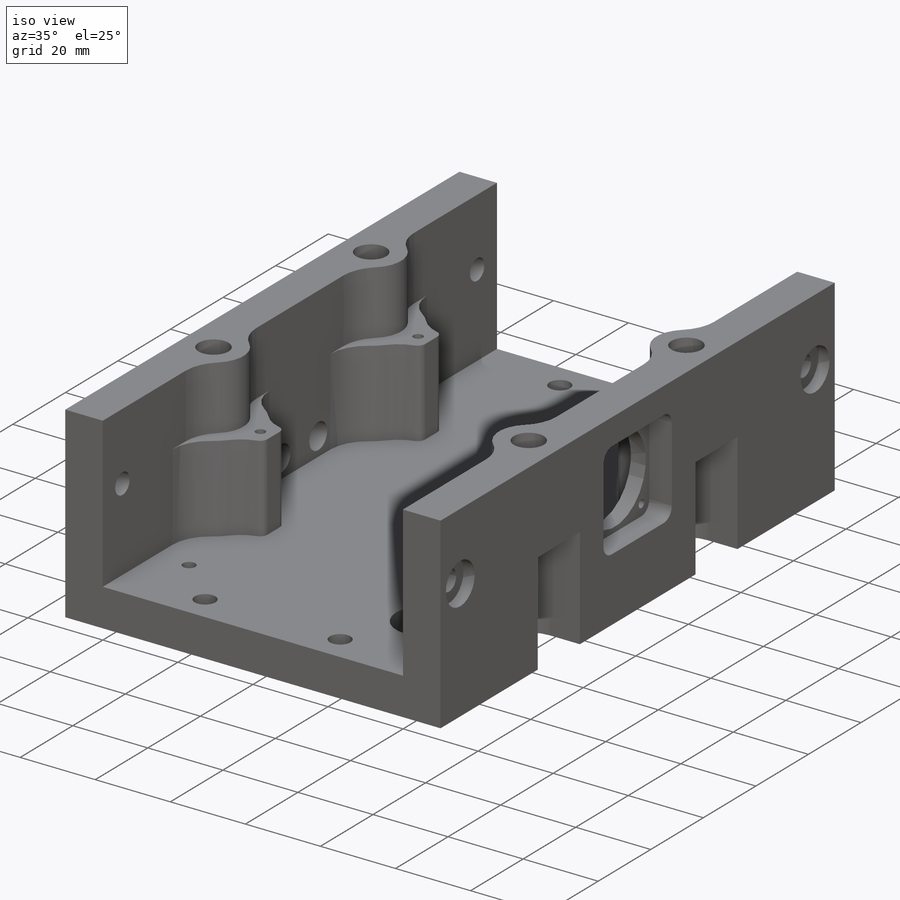
[diagram: iso view]
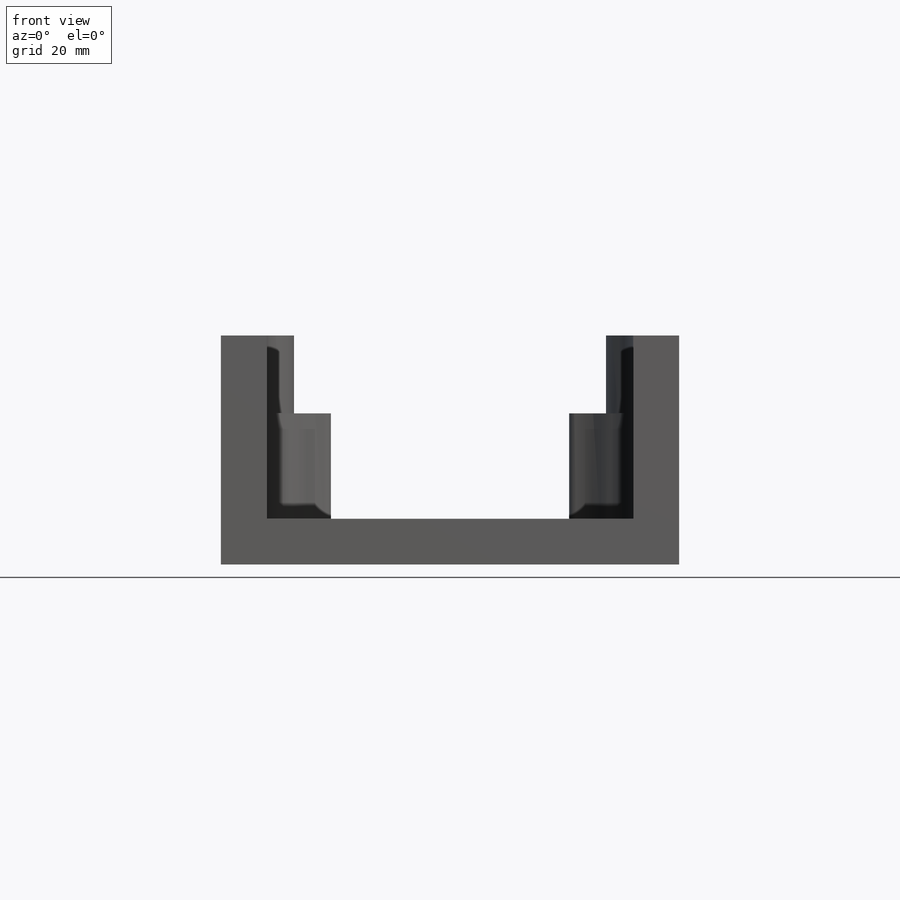
[diagram: front view]
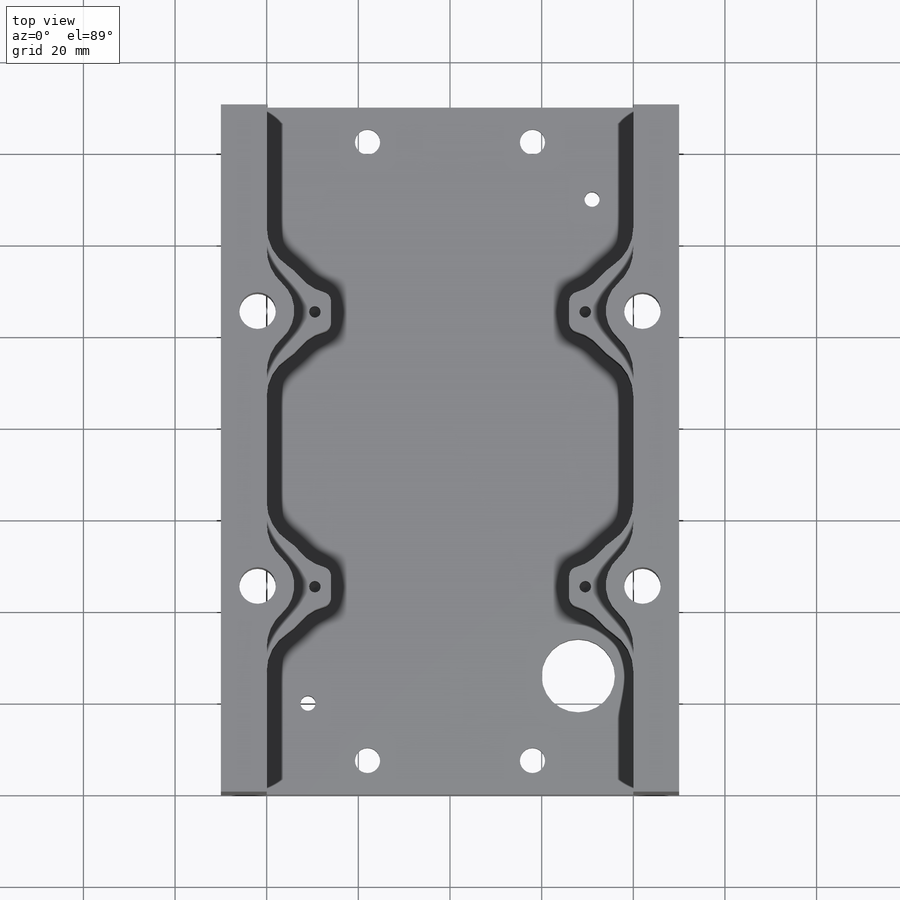
[diagram: top view]
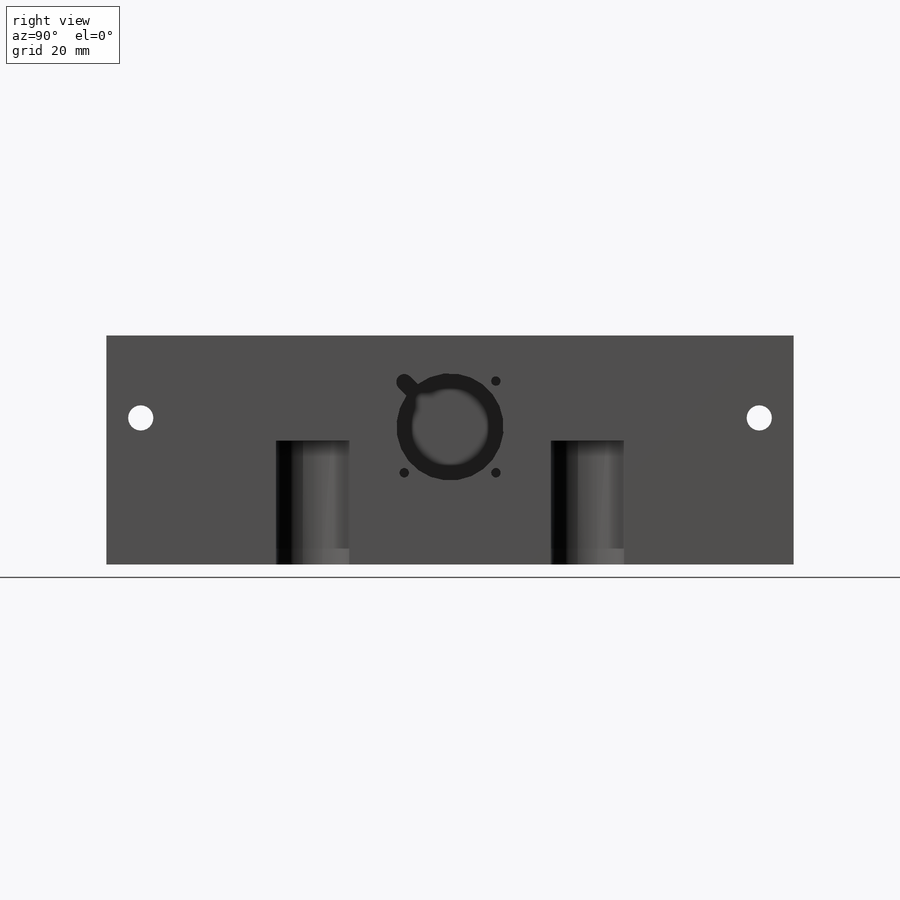
[diagram: right view]
SOLIDWORKS PART (.sldprt)
format: sldprt  version: not decoded by parser v0  size: 891,904 bytes
history: native  units: mm
features: sketch x23, thread x8, mirror x7, hole x7, fillet x5, cut_extrude x5, extrude x4, material x1, pattern_linear x1, plane x1 (+16 scaffold rows collapsed)
feature tree (78):
  scaffold x16  (default folders/planes/origin — collapsed)
  material  "ERTALON 6SA"
  sketch  "Sketch1"  dims[D1=10.0mm D2=10.0mm D3=10.0mm D4=100.0mm D5=50.0mm D6=50.0mm D7=7.0mm]
  extrude  "Extrude1"  Depth=150mm
  sketch  "Sketch2"  dims[D1=8.0mm D2=45.0mm D3=45.0mm]
  extrude  "Extrude2"  [1 undecoded]
  mirror  "Mirror1"
  fillet  "Fillet1"  Radius=10mm
  sketch  "Sketch7"  dims[c1.D1=8.0mm c1.D2=4.0mm c2.D1=8.0mm c2.D2=10.0mm c3.D1=4.0mm]
  extrude  "Extrude5"  Depth=23mm
  mirror  "Mirror3"
  sketch  "Sketch9"  dims[D1=4.0mm]
  cut_extrude  "Extrude7"  Depth=27mm
  mirror  "Mirror4"
  hole  "Ø8.0 (8) Diameter Hole2"  Diameter=8mm Depth=23.001mm
  sketch  "Sketch11"
  sketch  "Sketch10"  dims[hole-wizard template sketch: 60 standard entries collapsed; hole parameters kept: c18.Thru Hole Depth=23.001mm]
  pattern_linear  "LPattern3"  Count1=2 Count2=2 Spacing1=60mm Spacing2=84mm
  plane  "Plane1"  Offset=75mm
  sketch  "Sketch13"  dims[D1=16.0mm D2=26.0mm D3=22.0mm]
  cut_extrude  "Extrude9"  [1 undecoded]
  hole  "CBORE for M5 Hex Socket Head Cap Screw1"  Diameter=5.5mm Depth=10.001mm
  sketch  "Sketch20"  dims[D1=32.0mm D2=7.5mm]
  sketch  "Sketch19"  dims[hole-wizard template sketch: 42 standard entries collapsed; hole parameters kept: c12.Thru Hole Depth=10.001mm c12.C'Bore Dia.=11.0mm c12.C'Bore Depth=3.0mm]
  mirror  "Mirror13"
  hole  "CBORE for M5 Hex Socket Head Cap Screw2"  Diameter=5.5mm Depth=50mm
  sketch  "Sketch22"  dims[D1=7.5mm D2=22.0mm D3=22.0mm]
  sketch  "Sketch21"  dims[hole-wizard template sketch: 42 standard entries collapsed; hole parameters kept: c12.Thru Hole Depth=50.0mm c12.C'Bore Dia.=11.0mm c12.C'Bore Depth=3.0mm]
  mirror  "Mirror14"
  fillet  "Fillet12"  Radius=10mm
  sketch  "Sketch23"  dims[D1=8.0mm D2=24.0mm]
  extrude  "Extrude10"  [1 undecoded]
  hole  "M3 Tapped Hole1"  Diameter=2.5mm Depth=7.5mm
  sketch  "Sketch25"  dims[D1=3.5mm]
  sketch  "Sketch24"  dims[hole-wizard template sketch: 50 standard entries collapsed; hole parameters above]
  thread  "Hole Thread1"  Diameter=6mm  [1 undecoded]
  mirror  "Mirror15"
  mirror  "Mirror16"
  fillet  "Fillet13"  Radius=10mm
  fillet  "Fillet14"  Radius=2mm
  hole  "M4 Tapped Hole1"  [1 undecoded]
  sketch  "Sketch27"  dims[D1=19.0mm D2=20.0mm D3=19.0mm D4=20.0mm]
  thread  "Hole Thread2"  Diameter=4mm  [1 undecoded]
  thread  "Hole Thread3"  Diameter=4mm  [1 undecoded]
  sketch  "Sketch26"  dims[hole-wizard template sketch: 60 standard entries collapsed; hole parameters kept: c18.Thru Tap Drill Depth=10.0mm]
  hole  "M8 Tapped Hole1"  Diameter=6.8mm Depth=10mm
  sketch  "Sketch29"  dims[c1.D1=16.0mm c1.D2=8.0mm c1.D3=10.0mm c2.D1=22.0mm c2.D2=16.0mm c2.D3=24.0mm c3.D1=15.0mm c3.D2=14.0mm c3.D3=12.0mm c4.D1=15.0mm c4.D3=7.0mm]
  sketch  "Sketch28"  dims[hole-wizard template sketch: 60 standard entries collapsed; hole parameters kept: c18.Thru Tap Drill Depth=10.0mm]
  thread  "Hole Thread4"  Diameter=8mm  [1 undecoded]
  thread  "Hole Thread5"  Diameter=8mm  [1 undecoded]
  sketch  "Sketch30"  dims[D1=23.4mm D2=30.0mm]
  cut_extrude  "Extrude11"  [1 undecoded]
  sketch  "Sketch31"  dims[c1.D1=~28.768917mm c2.D1=90.0deg c3.D1=26.0mm c3.D2=26.0mm]
  cut_extrude  "Extrude12"  Depth=6mm
  fillet  "Fillet15"  Radius=3mm
  hole  "M2.5 Tapped Hole1"  Diameter=2.05mm Depth=6.35mm
  sketch  "Sketch33"  dims[D1=20.0mm D2=20.0mm D3=10.0mm D4=10.0mm]
  sketch  "Sketch32"  dims[hole-wizard template sketch: 47 standard entries collapsed; hole parameters kept: c15.Tap Drill Depth=6.35mm c15.D3=~14.816244mm c15.Drill Angle=118.0deg]
  thread  "Hole Thread6"  Diameter=4mm  [1 undecoded]
  thread  "Hole Thread7"  Diameter=4mm  [1 undecoded]
  thread  "Hole Thread8"  Diameter=4mm  [1 undecoded]
  sketch  "Sketch34"  dims[c1.D2=3.5mm c1.D1=3.5mm c2.D2=14.0mm c2.D3=3.0mm c2.D4=~3.137621mm c3.D4=45.0deg]
  cut_extrude  "Extrude13"  Depth=6mm
decode coverage: 47 of 60 modeling features carry decoded parameters
note: ~ marks probable driven/reference dimensions
note: 13 parameter values undecoded
summary: no parameter record found for 5 features; Diameter pulled from absorbed wizard sketch
note: suppression state not decoded; provenance and decode notes live in map.json
